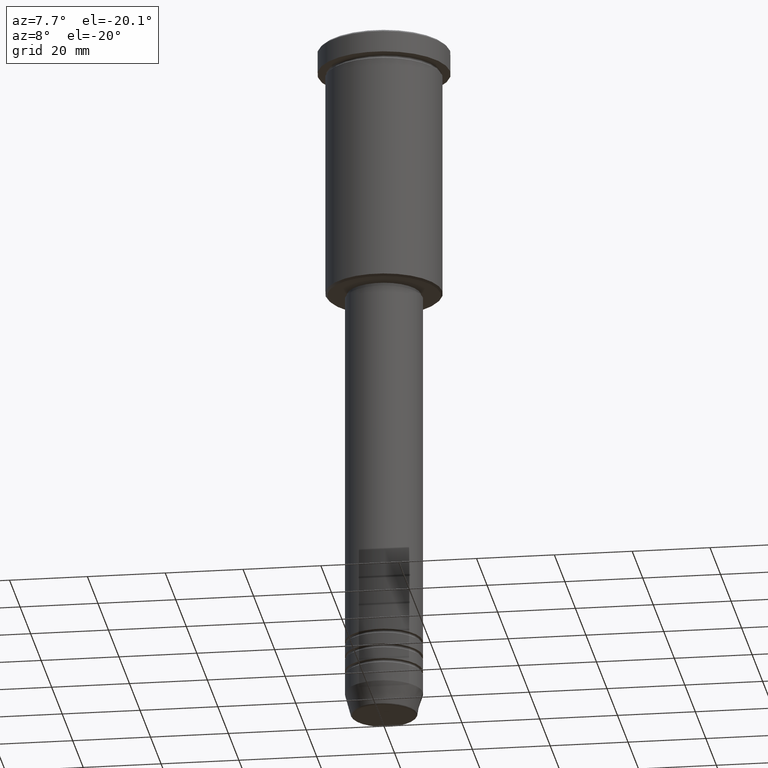
[diagram: clean part render]
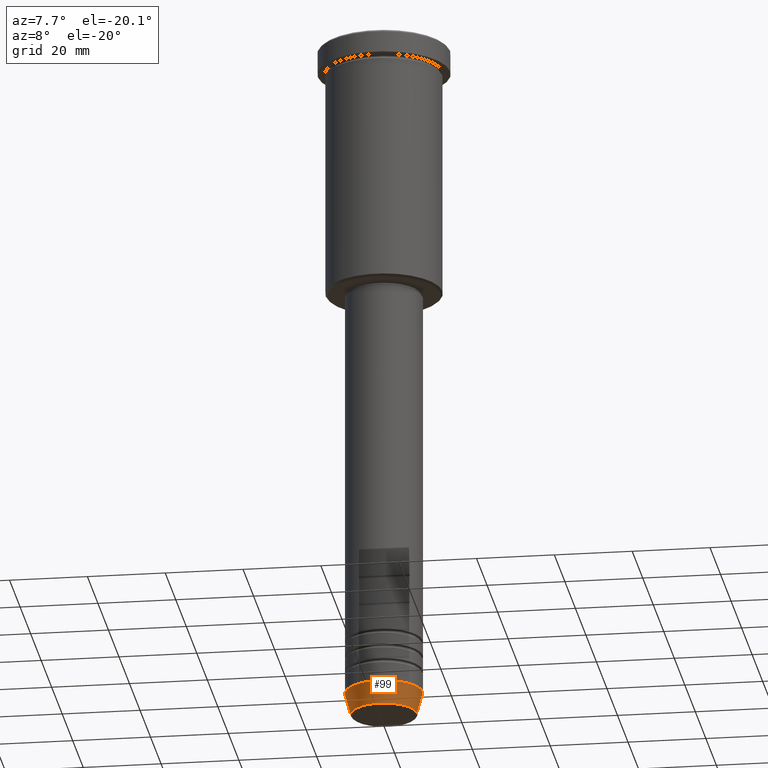
[diagram: same view with one face highlighted and labeled with its STEP entity id]
A machine part, auxiliary view. The second image highlights one B-rep face of the part: STEP entity #99.
In plain terms, the highlighted conical surface has half-angle 15 deg.
Its self-contained STEP definition (entity closure, byte-faithful):
#33 = VERTEX_POINT ( 'NONE', #1024 ) ;
#36 = CARTESIAN_POINT ( 'NONE',  ( -8.491604264568326954, 1.132284198685157767E-15, -179.6294095225512422 ) ) ;
#60 = EDGE_CURVE ( 'NONE', #628, #878, #563, .T. ) ;
#83 = DIRECTION ( 'NONE',  ( 1.000000000000000000, 0.000000000000000000, 0.000000000000000000 ) ) ;
#84 = CARTESIAN_POINT ( 'NONE',  ( 0.000000000000000000, 0.000000000000000000, -174.0000000000000284 ) ) ;
#99 = ADVANCED_FACE ( 'NONE', ( #383 ), #762, .T. ) ;
#159 = DIRECTION ( 'NONE',  ( 0.2588190451025214611, 0.000000000000000000, 0.9659258262890680902 ) ) ;
#185 = EDGE_LOOP ( 'NONE', ( #970, #223, #747, #1015 ) ) ;
#186 = CARTESIAN_POINT ( 'NONE',  ( 0.000000000000000000, 0.000000000000000000, -174.0000000000000284 ) ) ;
#223 = ORIENTED_EDGE ( 'NONE', *, *, #494, .T. ) ;
#228 = VECTOR ( 'NONE', #159, 1000.000000000000000 ) ;
#239 = LINE ( 'NONE', #332, #228 ) ;
#332 = CARTESIAN_POINT ( 'NONE',  ( 10.00000000000000178, 0.000000000000000000, -174.0000000000000284 ) ) ;
#378 = CIRCLE ( 'NONE', #395, 8.491604264568326954 ) ;
#383 = FACE_OUTER_BOUND ( 'NONE', #185, .T. ) ;
#395 = AXIS2_PLACEMENT_3D ( 'NONE', #471, #729, #83 ) ;
#471 = CARTESIAN_POINT ( 'NONE',  ( 0.000000000000000000, 0.000000000000000000, -179.6294095225512422 ) ) ;
#494 = EDGE_CURVE ( 'NONE', #628, #789, #378, .T. ) ;
#498 = AXIS2_PLACEMENT_3D ( 'NONE', #186, #1174, #1179 ) ;
#563 = LINE ( 'NONE', #934, #687 ) ;
#628 = VERTEX_POINT ( 'NONE', #36 ) ;
#687 = VECTOR ( 'NONE', #912, 1000.000000000000000 ) ;
#725 = DIRECTION ( 'NONE',  ( -0.000000000000000000, -0.000000000000000000, 1.000000000000000000 ) ) ;
#729 = DIRECTION ( 'NONE',  ( -0.000000000000000000, -0.000000000000000000, 1.000000000000000000 ) ) ;
#747 = ORIENTED_EDGE ( 'NONE', *, *, #854, .T. ) ;
#761 = CIRCLE ( 'NONE', #498, 10.00000000000000178 ) ;
#762 = CONICAL_SURFACE ( 'NONE', #1017, 10.00000000000000178, 0.2617993877991501850 ) ;
#789 = VERTEX_POINT ( 'NONE', #1159 ) ;
#806 = CARTESIAN_POINT ( 'NONE',  ( -10.00000000000000178, 1.224646799147353454E-15, -174.0000000000000284 ) ) ;
#854 = EDGE_CURVE ( 'NONE', #789, #33, #239, .T. ) ;
#878 = VERTEX_POINT ( 'NONE', #806 ) ;
#893 = EDGE_CURVE ( 'NONE', #878, #33, #761, .T. ) ;
#912 = DIRECTION ( 'NONE',  ( -0.2588190451025214611, 3.169619151431773569E-17, 0.9659258262890680902 ) ) ;
#934 = CARTESIAN_POINT ( 'NONE',  ( -10.00000000000000178, 1.224646799147353454E-15, -174.0000000000000284 ) ) ;
#970 = ORIENTED_EDGE ( 'NONE', *, *, #60, .F. ) ;
#1015 = ORIENTED_EDGE ( 'NONE', *, *, #893, .F. ) ;
#1017 = AXIS2_PLACEMENT_3D ( 'NONE', #84, #725, #1095 ) ;
#1024 = CARTESIAN_POINT ( 'NONE',  ( 10.00000000000000178, 0.000000000000000000, -174.0000000000000284 ) ) ;
#1095 = DIRECTION ( 'NONE',  ( 1.000000000000000000, 0.000000000000000000, 0.000000000000000000 ) ) ;
#1159 = CARTESIAN_POINT ( 'NONE',  ( 8.491604264568326954, 0.000000000000000000, -179.6294095225512422 ) ) ;
#1174 = DIRECTION ( 'NONE',  ( -0.000000000000000000, -0.000000000000000000, 1.000000000000000000 ) ) ;
#1179 = DIRECTION ( 'NONE',  ( 1.000000000000000000, 0.000000000000000000, 0.000000000000000000 ) ) ;